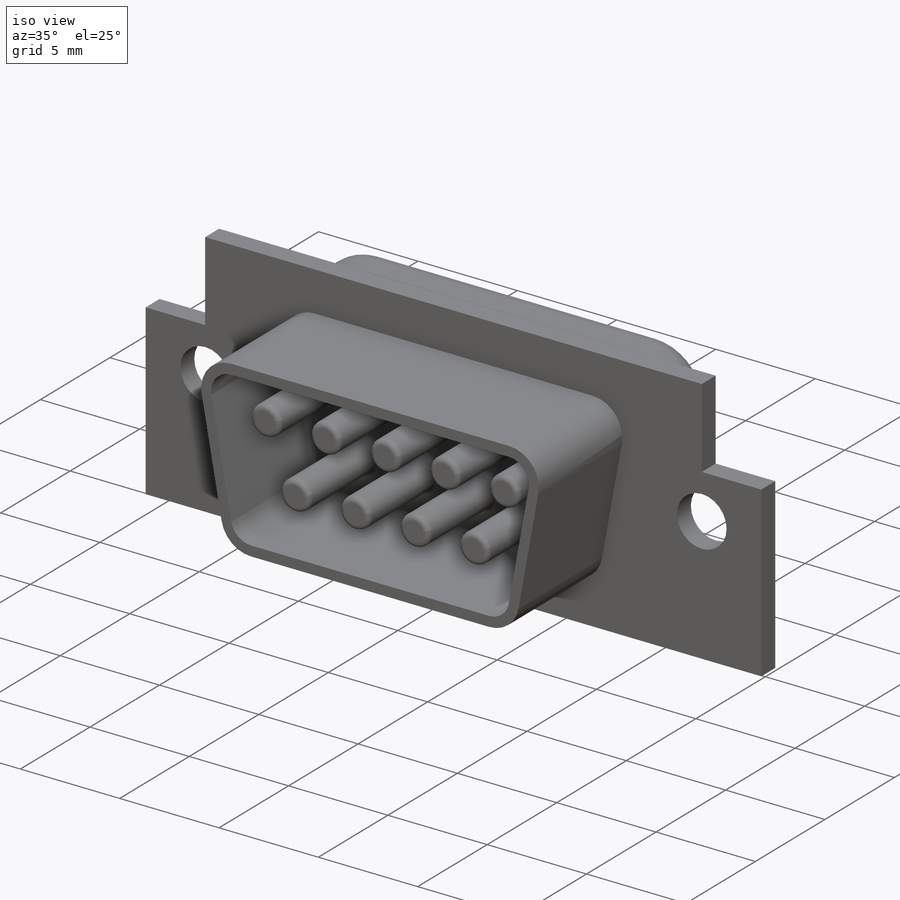
[diagram: iso view]
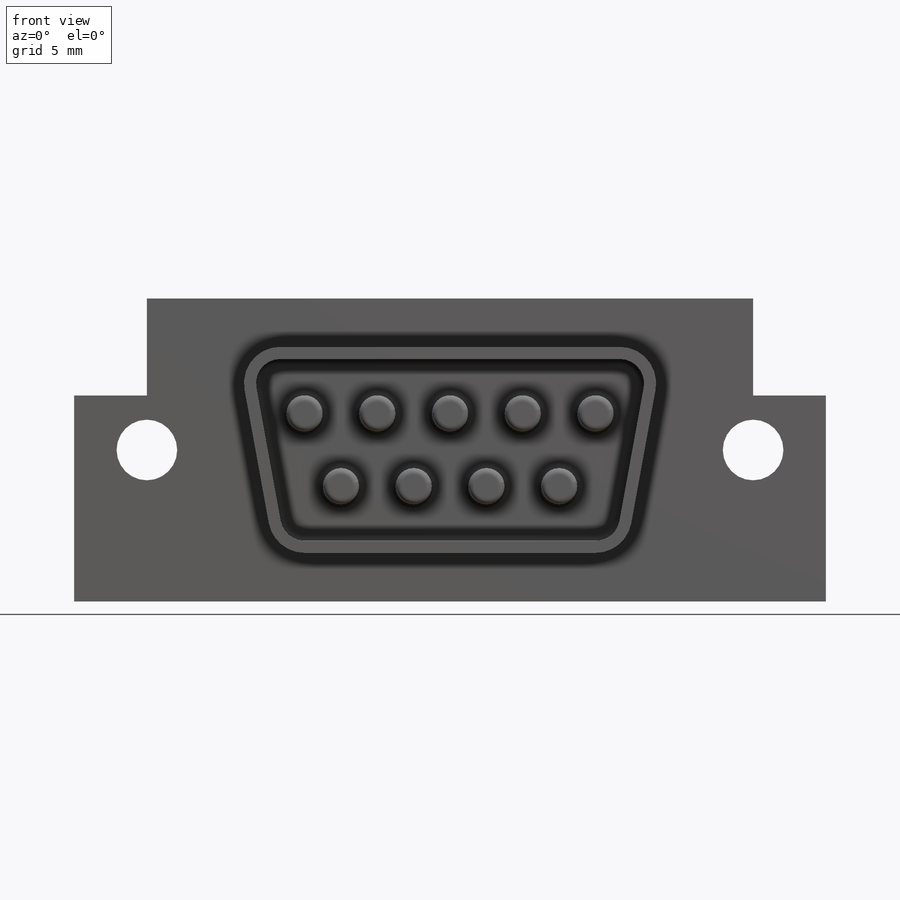
[diagram: front view]
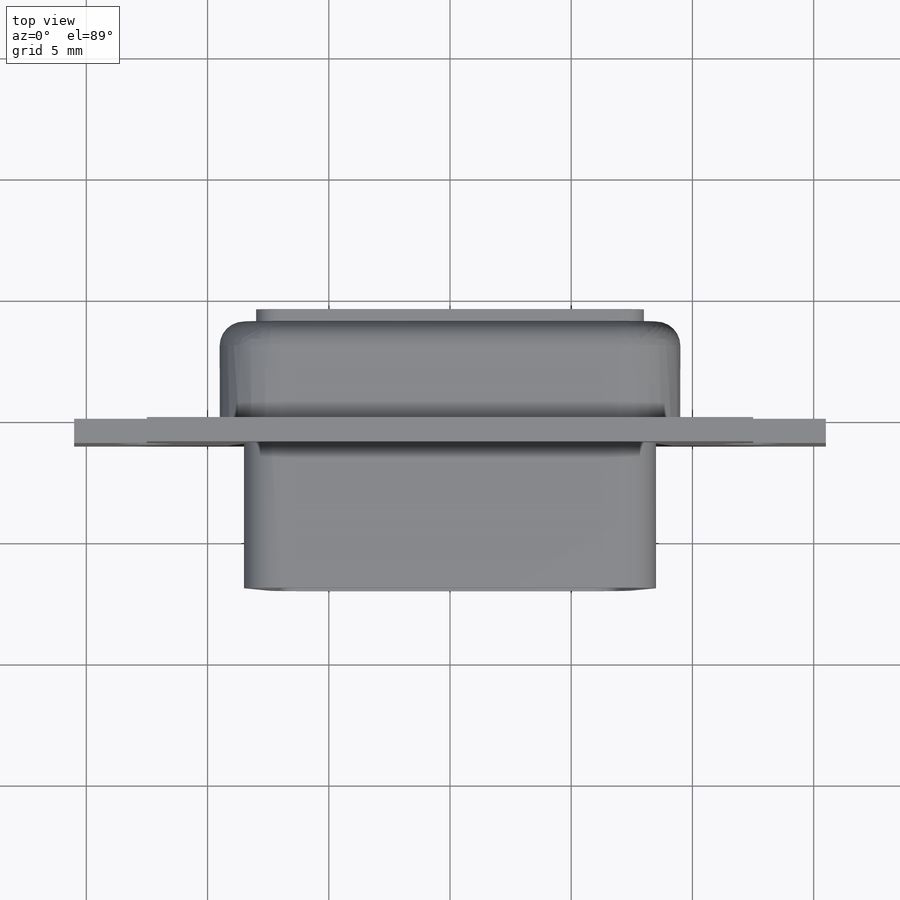
[diagram: top view]
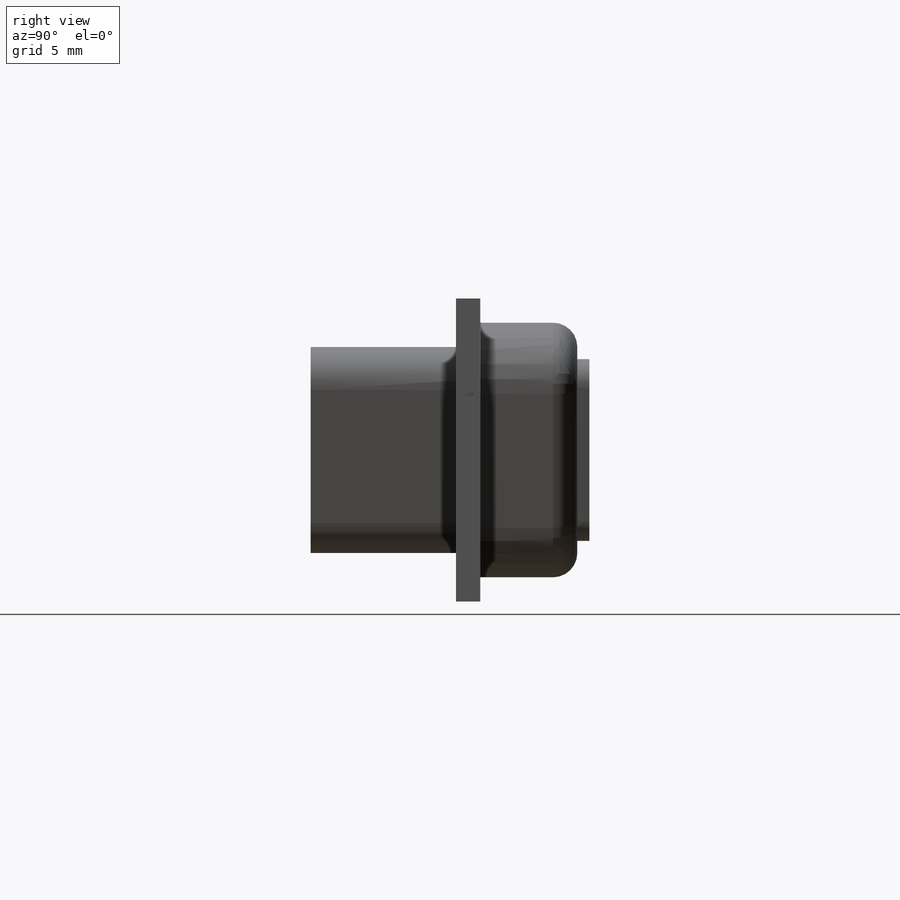
[diagram: right view]
SOLIDWORKS PART (.sldprt)
format: sldprt  version: not decoded by parser v0  size: 1,327,104 bytes
history: native  units: mm
features: sketch x8, extrude x5, thread x2, fillet x2, material x1, hole x1, cut_extrude x1 (+15 scaffold rows collapsed)
feature tree (35):
  scaffold x15  (default folders/planes/origin — collapsed)
  material  "1060 Alloy"
  sketch  "Sketch1"  dims[D1=31.0mm D2=12.5mm]
  extrude  "Extrude1"  Depth=1mm
  sketch  "Sketch2"  dims[c1.D3=2.0mm c1.D4=2.0mm c1.D2=2.0mm c1.D1=18.0mm c2.D2=9.5mm c2.D1=14.0mm c2.D5=9.5mm c2.D6=1.5mm c2.D7=12.0mm c2.D8=0.5mm]
  extrude  "Extrude2"  Depth=6mm
  hole  "M3x0.5 Tapped Hole1"  Diameter=2.5mm Depth=17.5mm
  sketch  "3DSketch1"  dims[D1=25.0mm D2=3.0mm D3=3.0mm]
  sketch  "Sketch4"  dims[hole-wizard template sketch: 47 standard entries collapsed; hole parameters kept: c15.Tap Drill Depth=17.5mm c15.D3=~14.816244mm c15.Drill Angle=118.0deg]
  thread  "Hole Thread1"  Diameter=1mm  [1 undecoded]
  thread  "Hole Thread2"  Diameter=1mm  [1 undecoded]
  sketch  "Sketch6"  dims[D1=0.5mm]
  extrude  "Extrude3"  Depth=4mm
  fillet  "Fillet2"  Radius=1mm
  sketch  "Sketch7"  dims[D1=0.5mm]
  extrude  "Extrude4"  Depth=0.5mm
  sketch  "Sketch8"  dims[c1.D1=1.5mm c1.D4=1.5mm c1.D5=1.5mm c1.D6=1.5mm c1.D7=1.5mm c1.D8=1.5mm c1.D9=1.5mm c1.D10=1.5mm c1.D11=1.5mm c1.D2=5.0mm c1.D3=1.5mm c2.D6=~2.688559mm c2.D2=3.0mm c2.D12=3.0mm c2.D13=3.0mm c2.D14=3.0mm c2.D15=1.5mm c2.D16=3.0mm c2.D17=3.0mm c2.D18=3.0mm]
  sketch  "Sketch10"  dims[D1=4.0mm D2=4.0mm D3=3.0mm D4=3.0mm]
  cut_extrude  "Cut-Extrude1"  Depth=5mm
  extrude  "Extrude5"  Depth=5mm
  fillet  "Fillet3"  Radius=0.25mm
decode coverage: 19 of 19 modeling features carry decoded parameters
note: ~ marks probable driven/reference dimensions
note: 2 parameter values undecoded
note: suppression state not decoded; provenance and decode notes live in map.json
